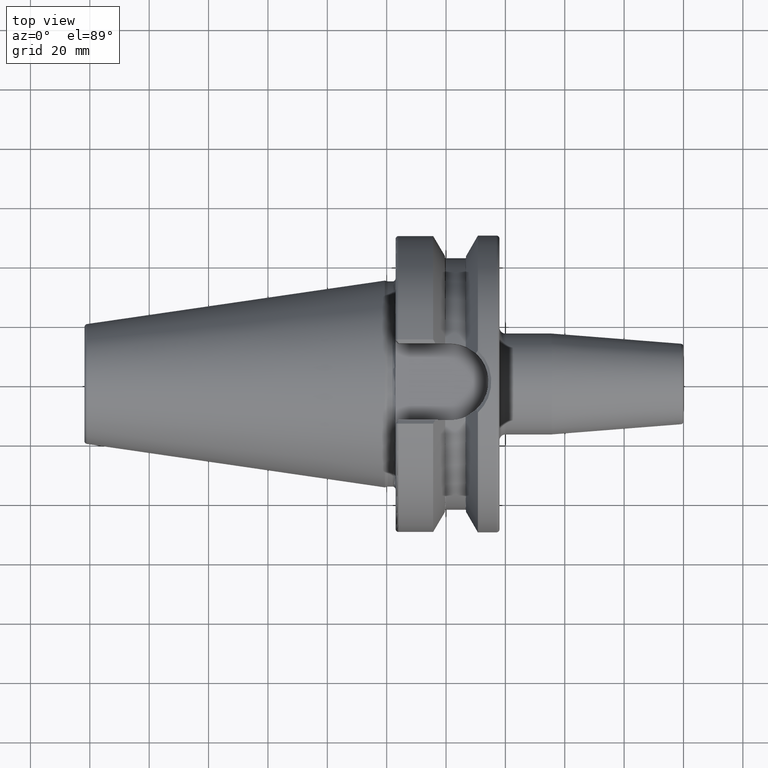
[diagram: clean part render]
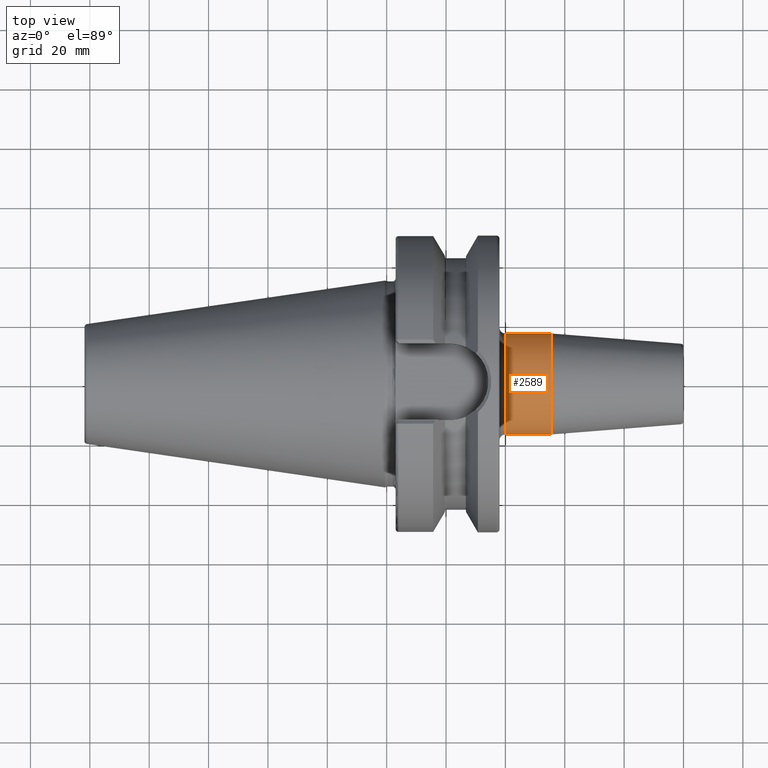
[diagram: same view with one face highlighted and labeled with its STEP entity id]
A machine part, top view. The second image highlights one B-rep face of the part: STEP entity #2589.
In plain terms, the highlighted cylindrical surface (partial cylindrical patch) has radius 17 mm, axis along (1, 0, 0).
Its self-contained STEP definition (entity closure, byte-faithful):
#854=CARTESIAN_POINT('',(4.E1,0.E0,0.E0));
#855=DIRECTION('',(1.E0,0.E0,0.E0));
#856=DIRECTION('',(0.E0,1.E0,0.E0));
#857=AXIS2_PLACEMENT_3D('',#854,#855,#856);
#859=CARTESIAN_POINT('',(5.552828342339E1,0.E0,0.E0));
#860=DIRECTION('',(1.E0,0.E0,0.E0));
#861=DIRECTION('',(0.E0,1.E0,0.E0));
#862=AXIS2_PLACEMENT_3D('',#859,#860,#861);
#869=DIRECTION('',(-1.E0,0.E0,-1.007681666499E-12));
#870=VECTOR('',#869,1.552828342339E1);
#871=CARTESIAN_POINT('',(5.552828342339E1,-1.7E1,0.E0));
#872=LINE('',#871,#870);
#878=DIRECTION('',(-1.E0,0.E0,1.008137901914E-12));
#879=VECTOR('',#878,1.552828342339E1);
#880=CARTESIAN_POINT('',(5.552828342339E1,1.7E1,0.E0));
#881=LINE('',#880,#879);
#1391=CARTESIAN_POINT('',(5.552828342339E1,1.7E1,0.E0));
#1392=CARTESIAN_POINT('',(5.552828342339E1,-1.7E1,0.E0));
#1393=VERTEX_POINT('',#1391);
#1394=VERTEX_POINT('',#1392);
#1407=CARTESIAN_POINT('',(4.E1,-1.7E1,0.E0));
#1408=CARTESIAN_POINT('',(4.E1,1.7E1,0.E0));
#1409=VERTEX_POINT('',#1407);
#1410=VERTEX_POINT('',#1408);
#2575=CARTESIAN_POINT('',(3.49E1,0.E0,0.E0));
#2576=DIRECTION('',(1.E0,0.E0,0.E0));
#2577=DIRECTION('',(0.E0,-1.E0,0.E0));
#2578=AXIS2_PLACEMENT_3D('',#2575,#2576,#2577);
#2579=CYLINDRICAL_SURFACE('',#2578,1.7E1);
#2580=ORIENTED_EDGE('',*,*,#2569,.F.);
#2582=ORIENTED_EDGE('',*,*,#2581,.F.);
#2584=ORIENTED_EDGE('',*,*,#2583,.T.);
#2586=ORIENTED_EDGE('',*,*,#2585,.T.);
#2587=EDGE_LOOP('',(#2580,#2582,#2584,#2586));
#2588=FACE_OUTER_BOUND('',#2587,.F.);
#2589=ADVANCED_FACE('',(#2588),#2579,.T.);
#858=CIRCLE('',#857,1.7E1);
#863=CIRCLE('',#862,1.7E1);
#2569=EDGE_CURVE('',#1410,#1409,#858,.T.);
#2581=EDGE_CURVE('',#1393,#1410,#881,.T.);
#2583=EDGE_CURVE('',#1393,#1394,#863,.T.);
#2585=EDGE_CURVE('',#1394,#1409,#872,.T.);